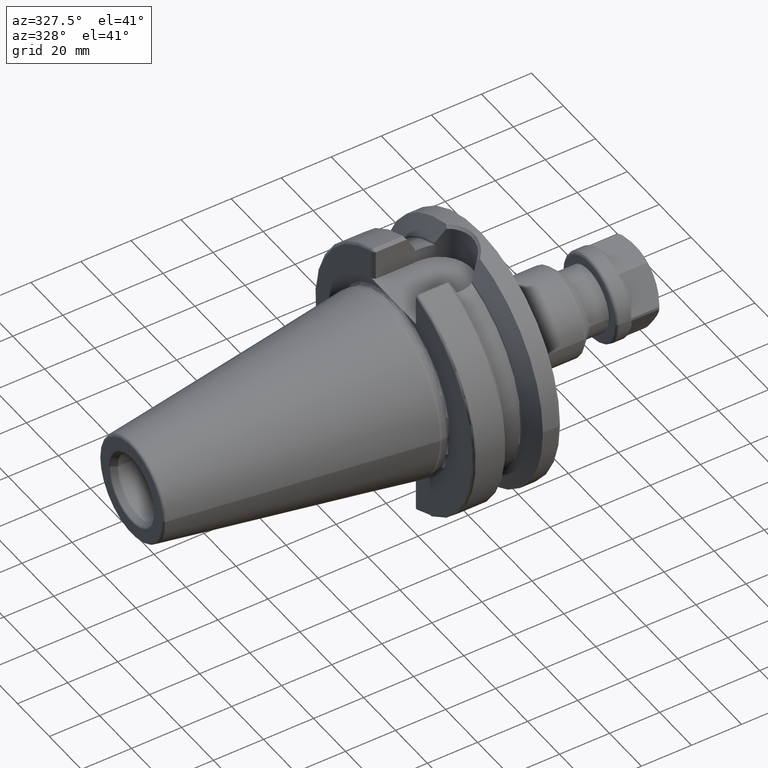
[diagram: clean part render]
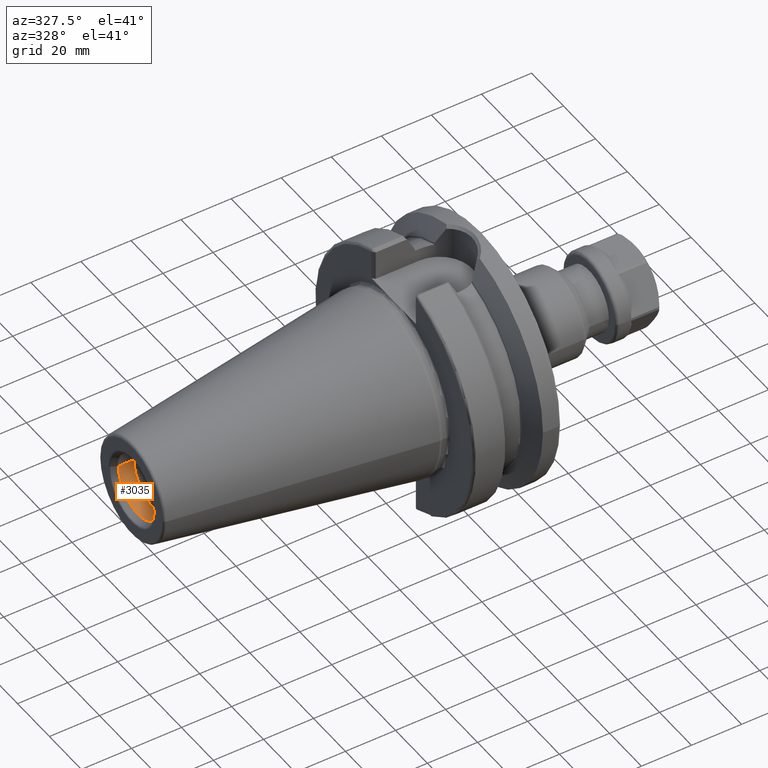
[diagram: same view with one face highlighted and labeled with its STEP entity id]
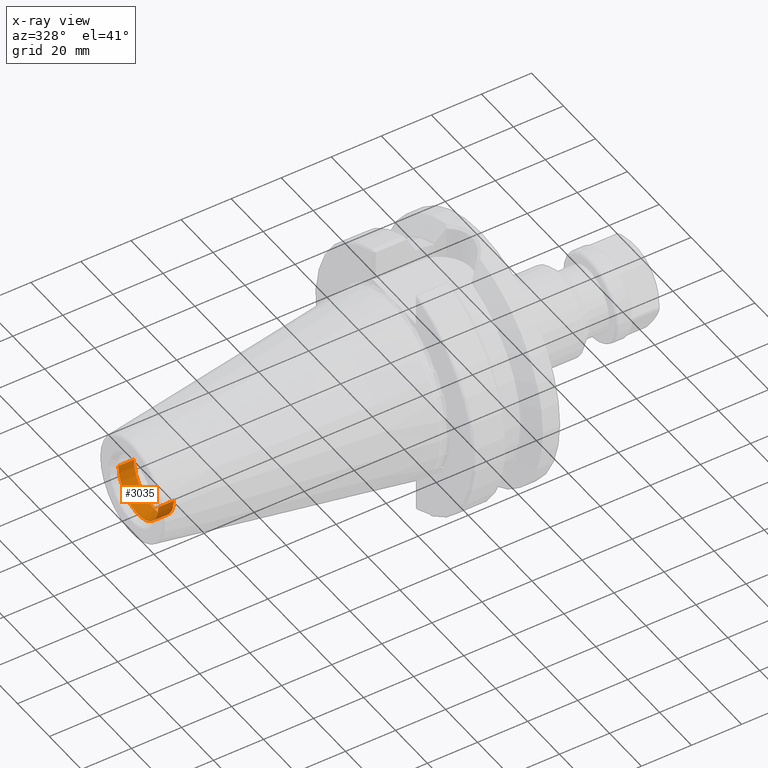
[diagram: x-ray of the same camera — body ghosted, the highlighted face saturated]
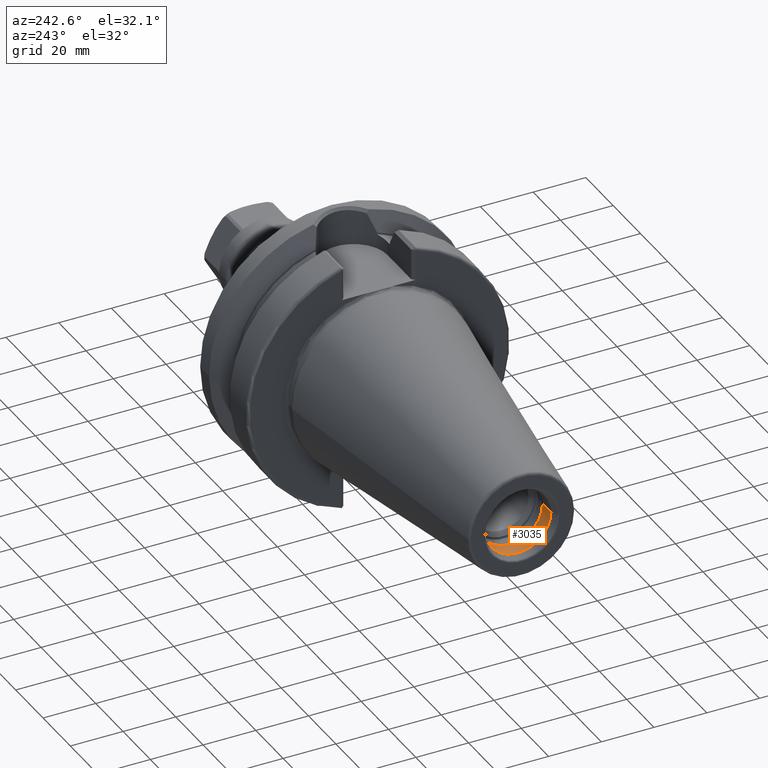
[diagram: same view with one face highlighted and labeled with its STEP entity id]
A machine part, auxiliary view. The second image highlights one B-rep face of the part: STEP entity #3035.
The next image is the same camera in x-ray: the body ghosted, the highlighted face saturated — about 0% of this face is hidden behind the body in this view.
A second angle (auxiliary view) of the same face is appended — the face is thin or edge-on in the first view.
In plain terms, the highlighted cylindrical surface (partial cylindrical patch) has radius 12.5083 mm, axis along (1, 0, 0).
Its self-contained STEP definition (entity closure, byte-faithful):
#1066=CARTESIAN_POINT('',(-9.900185385386E1,0.E0,0.E0));
#1067=DIRECTION('',(-1.E0,0.E0,0.E0));
#1068=DIRECTION('',(0.E0,1.E0,0.E0));
#1069=AXIS2_PLACEMENT_3D('',#1066,#1067,#1068);
#1076=DIRECTION('',(-1.E0,0.E0,0.E0));
#1077=VECTOR('',#1076,6.151853853864E0);
#1078=CARTESIAN_POINT('',(-9.285E1,1.250825E1,0.E0));
#1079=LINE('',#1078,#1077);
#1080=CARTESIAN_POINT('',(-9.285E1,0.E0,0.E0));
#1081=DIRECTION('',(-1.E0,0.E0,0.E0));
#1082=DIRECTION('',(0.E0,1.E0,0.E0));
#1083=AXIS2_PLACEMENT_3D('',#1080,#1081,#1082);
#1085=DIRECTION('',(-1.E0,0.E0,0.E0));
#1086=VECTOR('',#1085,6.151853853864E0);
#1087=CARTESIAN_POINT('',(-9.285E1,-1.250825E1,0.E0));
#1088=LINE('',#1087,#1086);
#1324=CARTESIAN_POINT('',(-9.285E1,1.250825E1,0.E0));
#1325=VERTEX_POINT('',#1324);
#1326=CARTESIAN_POINT('',(-9.900185385386E1,1.250825E1,0.E0));
#1327=VERTEX_POINT('',#1326);
#1346=CARTESIAN_POINT('',(-9.285E1,-1.250825E1,0.E0));
#1347=VERTEX_POINT('',#1346);
#1348=CARTESIAN_POINT('',(-9.900185385386E1,-1.250825E1,0.E0));
#1349=VERTEX_POINT('',#1348);
#3021=CARTESIAN_POINT('',(-1.053116964461E2,0.E0,0.E0));
#3022=DIRECTION('',(1.E0,0.E0,0.E0));
#3023=DIRECTION('',(0.E0,-1.E0,0.E0));
#3024=AXIS2_PLACEMENT_3D('',#3021,#3022,#3023);
#3025=CYLINDRICAL_SURFACE('',#3024,1.250825E1);
#3027=ORIENTED_EDGE('',*,*,#3026,.F.);
#3029=ORIENTED_EDGE('',*,*,#3028,.T.);
#3031=ORIENTED_EDGE('',*,*,#3030,.T.);
#3032=ORIENTED_EDGE('',*,*,#3014,.F.);
#3033=EDGE_LOOP('',(#3027,#3029,#3031,#3032));
#3034=FACE_OUTER_BOUND('',#3033,.F.);
#3035=ADVANCED_FACE('',(#3034),#3025,.F.);
#1070=CIRCLE('',#1069,1.250825E1);
#1084=CIRCLE('',#1083,1.250825E1);
#3014=EDGE_CURVE('',#1327,#1349,#1070,.T.);
#3026=EDGE_CURVE('',#1325,#1327,#1079,.T.);
#3028=EDGE_CURVE('',#1325,#1347,#1084,.T.);
#3030=EDGE_CURVE('',#1347,#1349,#1088,.T.);